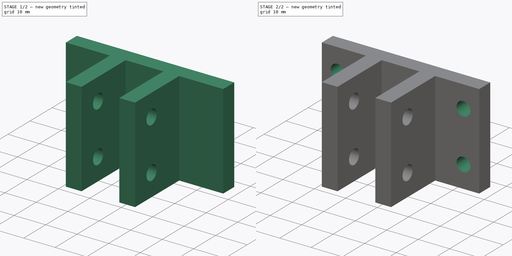
[diagram: build sequence overview — one tinted view per stage of 2, left to right]
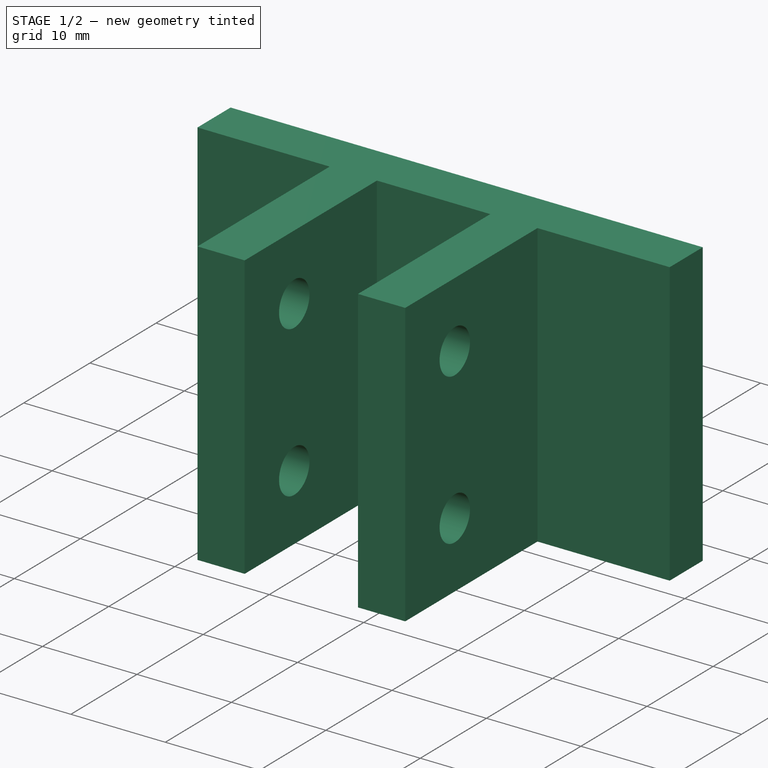
[diagram: stage 1 of 2 — iso view after this stage's code; geometry added in this stage tinted green]
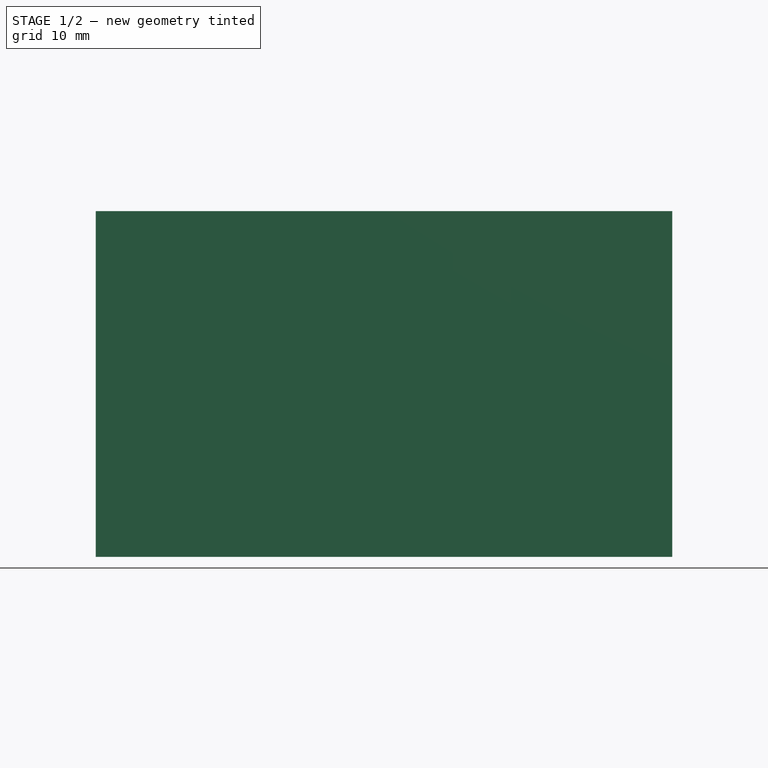
[diagram: stage 1 of 2 — front view after this stage's code; geometry added in this stage tinted green]
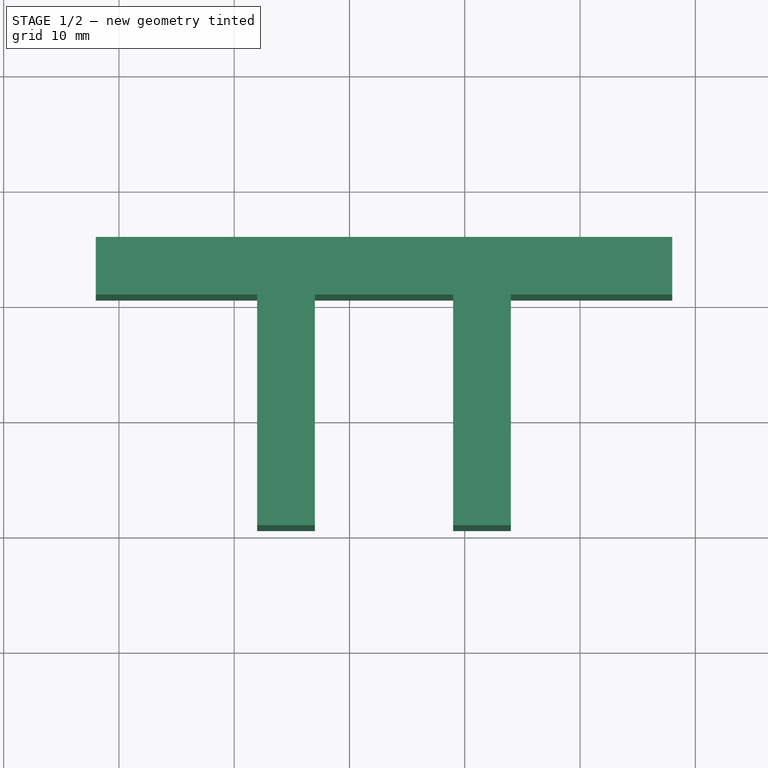
[diagram: stage 1 of 2 — top view after this stage's code; geometry added in this stage tinted green]
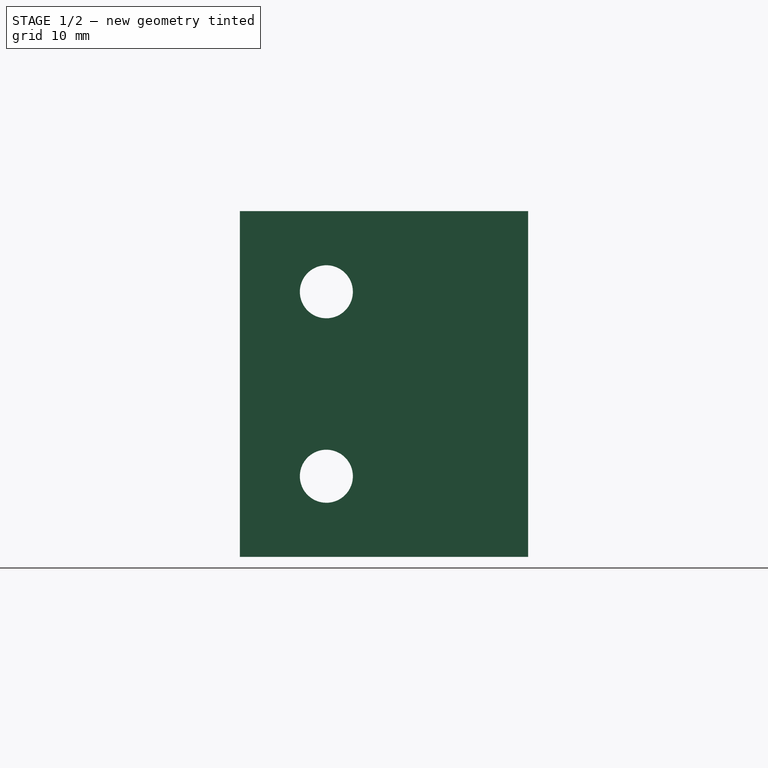
[diagram: stage 1 of 2 — right view after this stage's code; geometry added in this stage tinted green]
FCSTD DOCUMENT  (FreeCAD 0.16R6706 (Git))
Label: Suporte Polia Esticador - Copia
License: All rights reserved
LicenseURL: http://en.wikipedia.org/wiki/All_rights_reserved
objects: Sketcher::SketchObject×3, PartDesign::Pocket×2, PartDesign::Pad×1
note: 9 computed .brp shape members not serialized (recipe doc carries the construction recipe); baked Part::Feature solids carry a one-line shape summary decoded from their .brp

FEATURE [Sketcher::SketchObject] Sketch
  sketch-geometry (12):
    g0: LineSegment StartX=27.9928 StartY=15.5799 StartZ=0 EndX=-22.0072 EndY=15.5799 EndZ=0
    g1: LineSegment StartX=-22.0072 StartY=15.5799 StartZ=0 EndX=-22.0072 EndY=10.5799 EndZ=0
    g2: LineSegment StartX=-22.0072 StartY=10.5799 StartZ=0 EndX=-8.00715 EndY=10.5799 EndZ=0
    g3: LineSegment StartX=-8.00715 StartY=10.5799 StartZ=0 EndX=-8.00715 EndY=-9.42006 EndZ=0
    g4: LineSegment StartX=-8.00715 StartY=-9.42006 StartZ=0 EndX=-3.00715 EndY=-9.42006 EndZ=0
    g5: LineSegment StartX=-3.00715 StartY=-9.42006 StartZ=0 EndX=-3.00715 EndY=10.5799 EndZ=0
    g6: LineSegment StartX=-3.00715 StartY=10.5799 StartZ=0 EndX=8.99285 EndY=10.5799 EndZ=0
    g7: LineSegment StartX=8.99285 StartY=10.5799 StartZ=0 EndX=8.99285 EndY=-9.42006 EndZ=0
    g8: LineSegment StartX=8.99285 StartY=-9.42006 StartZ=0 EndX=13.9928 EndY=-9.42006 EndZ=0
    g9: LineSegment StartX=13.9928 StartY=-9.42006 StartZ=0 EndX=13.9928 EndY=10.5799 EndZ=0
    g10: LineSegment StartX=13.9928 StartY=10.5799 StartZ=0 EndX=27.9928 EndY=10.5799 EndZ=0
    g11: LineSegment StartX=27.9928 StartY=10.5799 StartZ=0 EndX=27.9928 EndY=15.5799 EndZ=0
  constraints (35):
    c: Coincident(g0,g1)
    c: Coincident(g1,g2)
    c: Coincident(g2,g3)
    c: Coincident(g3,g4)
    c: Coincident(g4,g5)
    c: Coincident(g5,g6)
    c: Coincident(g6,g7)
    c: Coincident(g7,g8)
    c: Coincident(g8,g9)
    c: Coincident(g9,g10)
    c: Coincident(g10,g11)
    c: Coincident(g0,g11)
    c: Horizontal(g0)
    c: Horizontal(g2)
    c: Horizontal(g10)
    c: Horizontal(g6)
    c: Horizontal(g4)
    c: Horizontal(g8)
    c: Vertical(g1)
    c: Vertical(g11)
    c: Vertical(g9)
    c: Vertical(g7)
    c: Vertical(g5)
    c: Vertical(g3)
    c: Equal(g4,g8)
    c: Equal(g5,g7)
    c: Equal(g3,g9)
    c: Equal(g2,g10)
    c: Equal(g1,g11)
    c: DistanceX(g6,g6) = 12
    c: DistanceY(g5,g5) = 20
    c: DistanceX(g8,g8) = 5
    c: DistanceY(g1,g1) = 5
    c: DistanceY(g6,g0) = 5
    c: DistanceX(g0,g0) = 50
FEATURE [PartDesign::Pad] Pad
  Length = 30
  Length2 = 100
  Sketch = -> Sketch
  Type = 0
FEATURE [Sketcher::SketchObject] Sketch001
  ExternalGeometry = -> [Pad]
  Placement = pos=(13.9928,0,0) rot=(0.57735,0.57735,0.57735;2.0944rad)
  Support = -> Pad [Face10]
  sketch-geometry (2):
    g0: Circle CenterX=-1.92006 CenterY=7 CenterZ=0 NormalX=0 NormalY=0 NormalZ=1 Radius=2.3
    g1: Circle CenterX=-1.92006 CenterY=23 CenterZ=0 NormalX=0 NormalY=0 NormalZ=1 Radius=2.3
  constraints (6):
    c: Radius(g0) = 2.3
    c: DistanceX(g-4,g0) = 7.5
    c: Equal(g0,g1) = 2.3
    c: DistanceX(g-4,g1) = 7.5
    c: DistanceY(g-3,g0) = 7
    c: DistanceY(g-3,g1) = 23
FEATURE [PartDesign::Pocket] Pocket
  Length = 5
  Sketch = -> Sketch001
  Type = 1
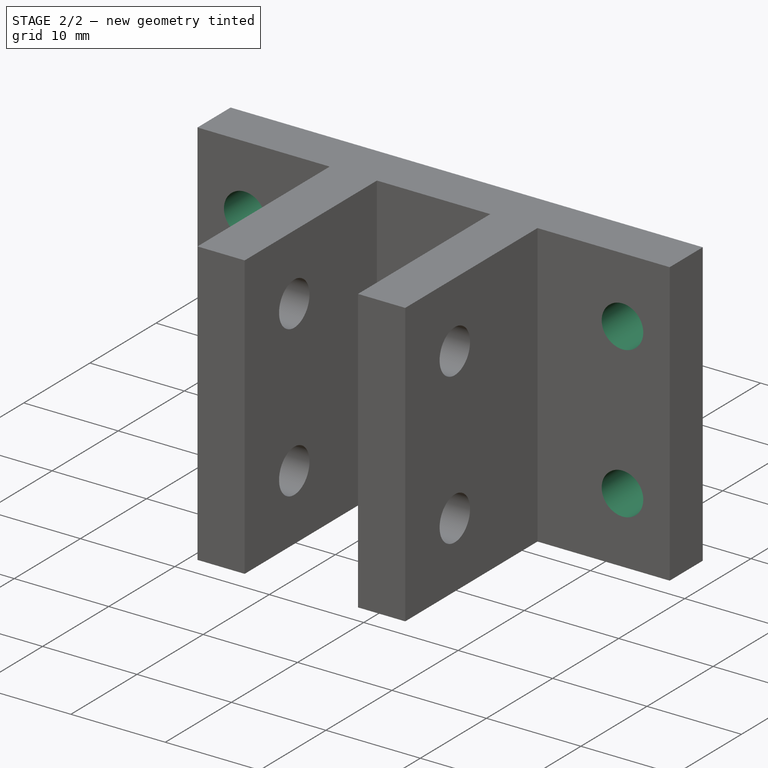
[diagram: stage 2 of 2 — iso view after this stage's code; geometry added in this stage tinted green]
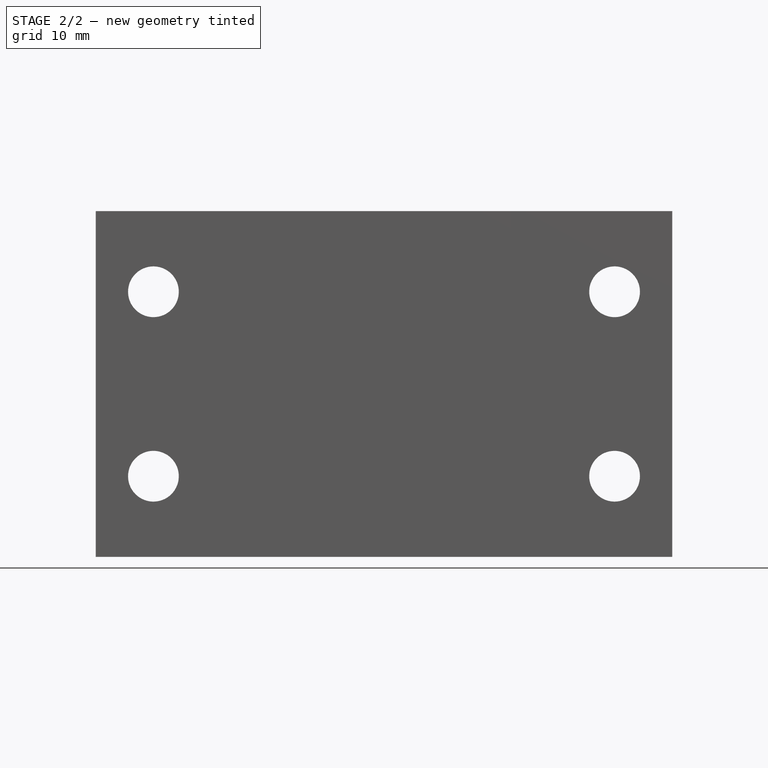
[diagram: stage 2 of 2 — front view after this stage's code; geometry added in this stage tinted green]
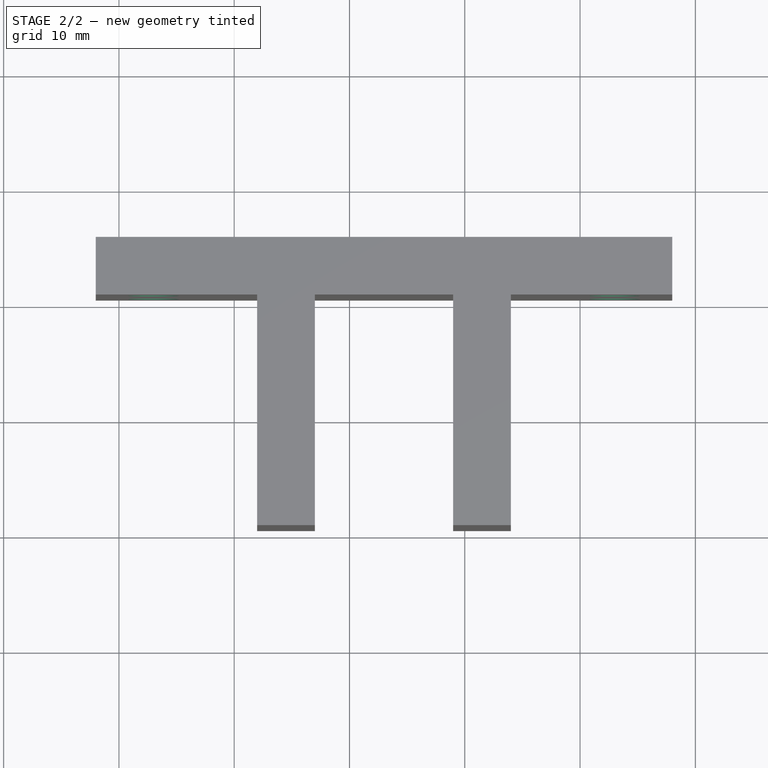
[diagram: stage 2 of 2 — top view after this stage's code; geometry added in this stage tinted green]
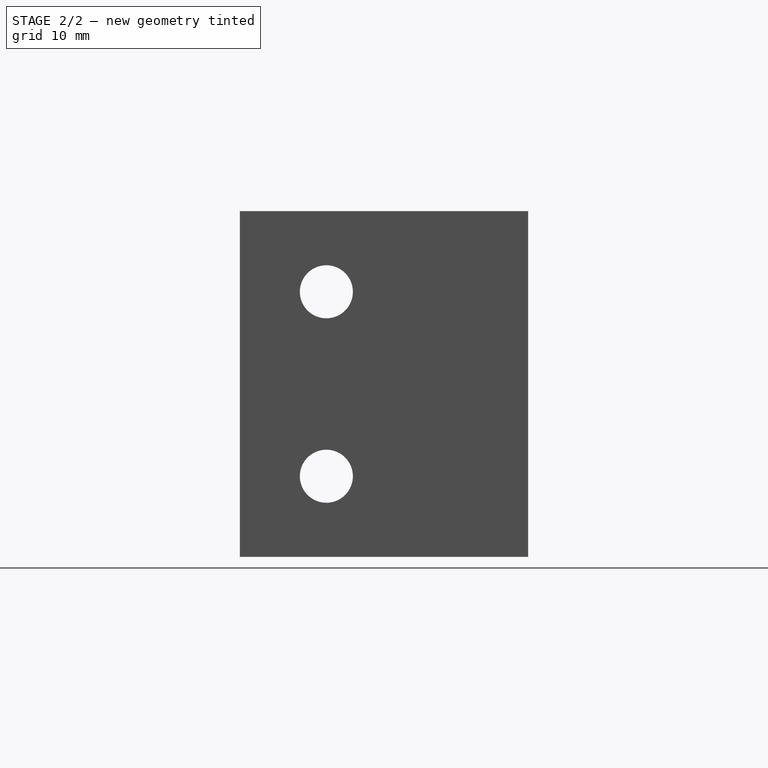
[diagram: stage 2 of 2 — right view after this stage's code; geometry added in this stage tinted green]
FEATURE [Sketcher::SketchObject] Sketch002
  ExternalGeometry = -> [Pocket]
  Placement = pos=(0,15.5799,0) rot=(0,0.707107,0.707107;3.14159rad)
  Support = -> Pocket [Face1]
  sketch-geometry (7):
    g0: LineSegment [constr] StartX=-22.9928 StartY=7 StartZ=0 EndX=17.0072 EndY=7 EndZ=0
    g1: Circle CenterX=-22.9928 CenterY=7 CenterZ=0 NormalX=0 NormalY=0 NormalZ=1 Radius=2.2
    g2: Circle CenterX=17.0072 CenterY=7 CenterZ=0 NormalX=0 NormalY=0 NormalZ=1 Radius=2.2
    g3: LineSegment [constr] StartX=-2.99285 StartY=17.3671 StartZ=0 EndX=-2.99285 EndY=3.42772 EndZ=0
    g4: LineSegment [constr] StartX=-22.9928 StartY=23 StartZ=0 EndX=17.0072 EndY=23 EndZ=0
    g5: Circle CenterX=-22.9928 CenterY=23 CenterZ=0 NormalX=0 NormalY=0 NormalZ=1 Radius=2.2
    g6: Circle CenterX=17.0072 CenterY=23 CenterZ=0 NormalX=0 NormalY=0 NormalZ=1 Radius=2.2
  constraints (16):
    c: Radius(g1) = 2.2
    c: Equal(g1,g2) = 2.2
    c: Vertical(g3)
    c: Symmetric(g-4,g-4,g3)
    c: Coincident(g2,g0)
    c: Coincident(g1,g0)
    c: Symmetric(g0,g0,g3)
    c: DistanceX(g0,g0) = 40
    c: DistanceY(g-4,g0) = 7
    c: Equal(g1,g5) = 2.2
    c: Equal(g5,g6) = 2.2
    c: Coincident(g6,g4)
    c: Coincident(g5,g4)
    c: Equal(g0,g4) = 40
    c: Symmetric(g4,g4,g3)
    c: DistanceY(g-4,g4) = 23
FEATURE [PartDesign::Pocket] Pocket001
  Length = 5
  Sketch = -> Sketch002
  Type = 1
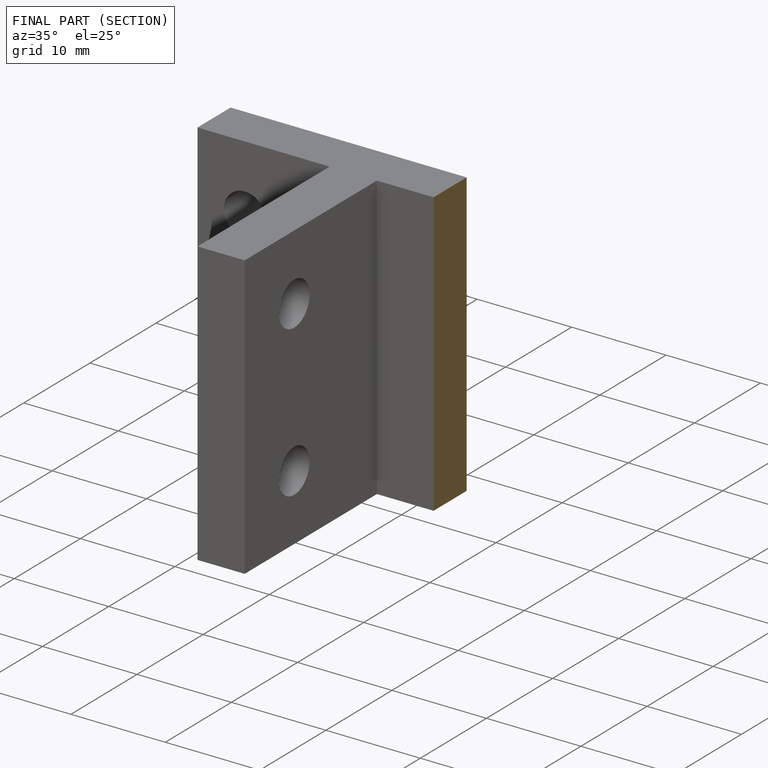
[diagram: finished part — half-section view (interior)]
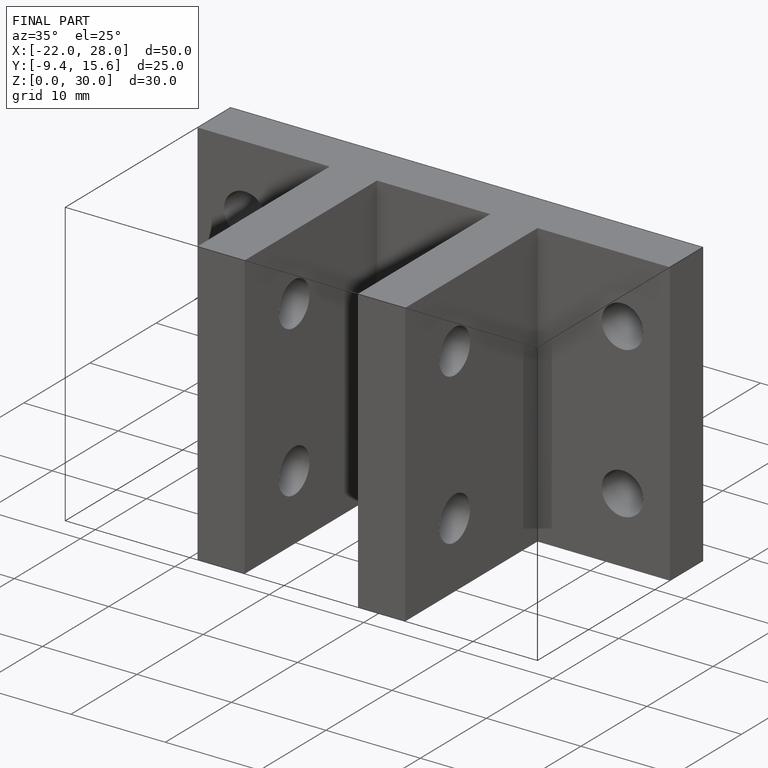
[diagram: finished part — iso view with bounding-box wireframe]
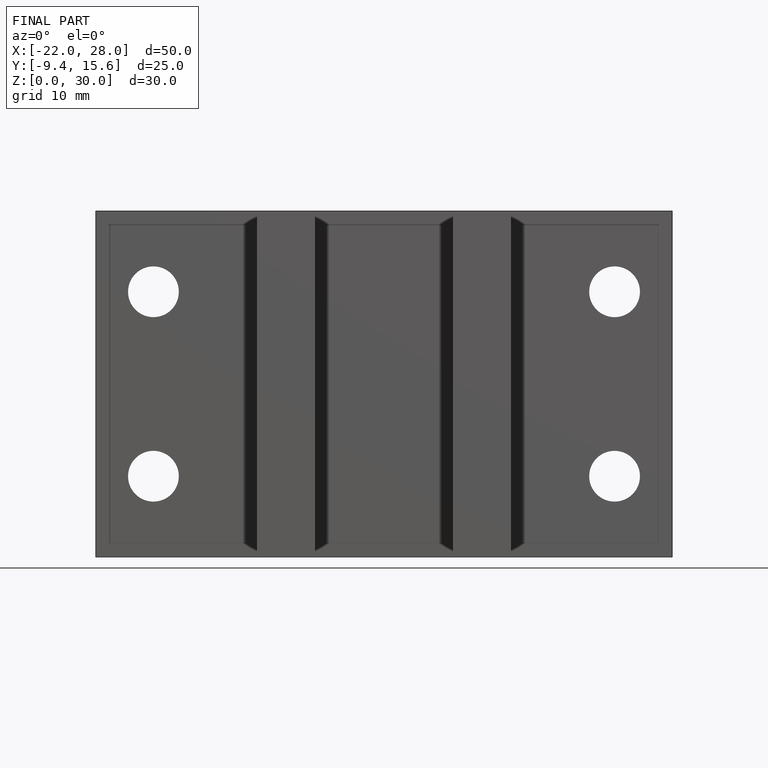
[diagram: finished part — front view with bounding-box wireframe]
